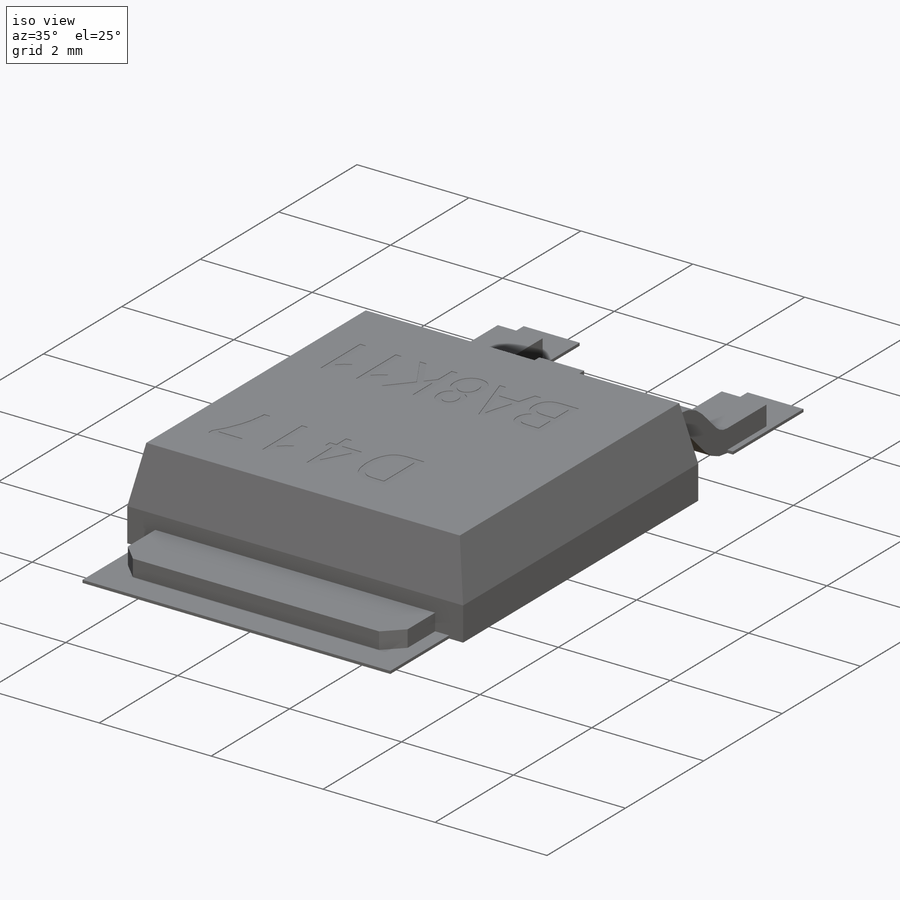
[diagram: iso view]
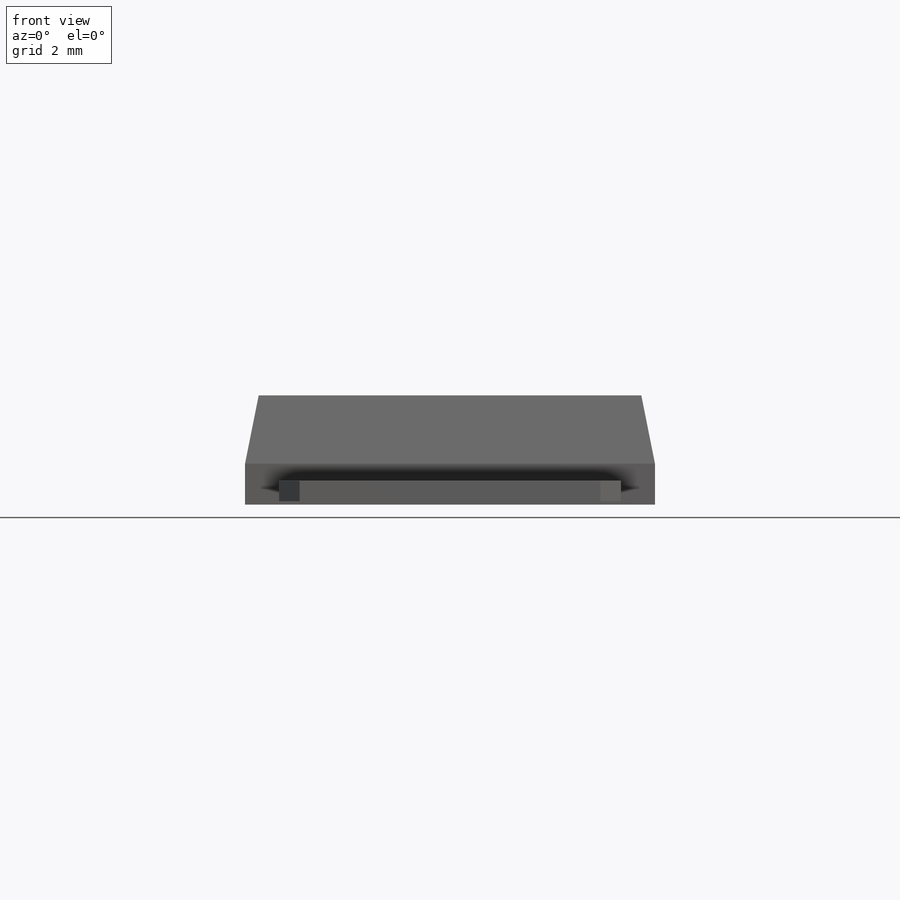
[diagram: front view]
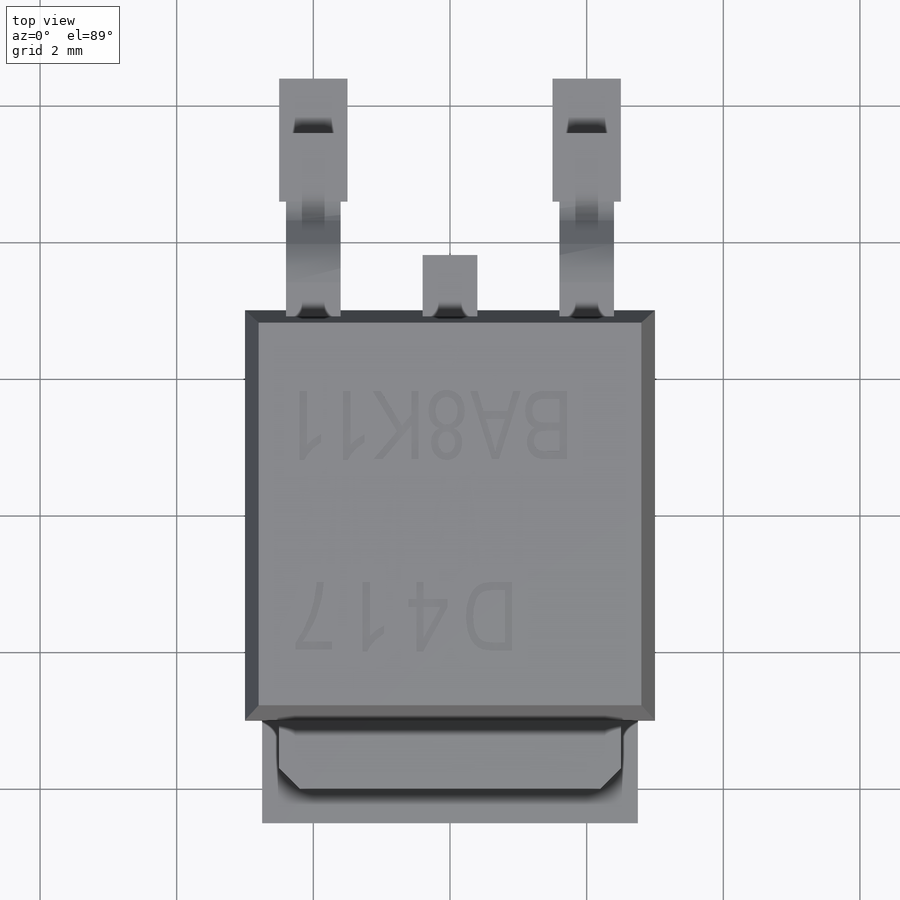
[diagram: top view]
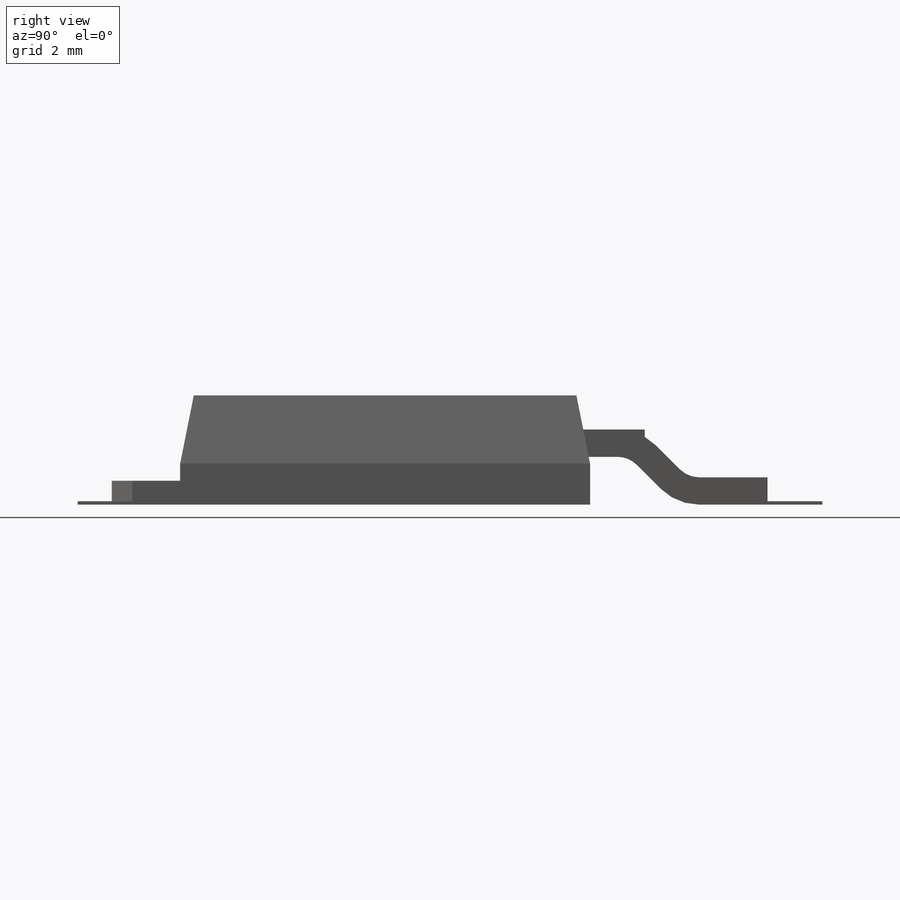
[diagram: right view]
SOLIDWORKS PART (.sldprt)
format: sldprt  version: not decoded by parser v0  size: 568,320 bytes
history: native  units: mm
features: sketch x7, extrude x3, cut_extrude x2, mirror x2, material x1, chamfer x1, plane x1 (+13 scaffold rows collapsed)
feature tree (30):
  scaffold x13  (default folders/planes/origin — collapsed)
  material  "Pure Silver"
  sketch  "Sketch1"  dims[D1=6.0mm D2=3.0mm D3=6.0mm D4=3.0mm]
  extrude  "Boss-Extrude1"  Depth=1.6mm
  chamfer  "Chamfer1"  Distance=1mm
  sketch  "Esquisse1"  dims[c1.D1=1.0mm c1.D2=0.3mm c1.D3=0.3mm c2.D3=45.0deg c2.D4=5.0mm c2.D5=2.5mm]
  extrude  "Boss.-Extru.1"  Depth=0.35mm
  plane  "Plane1"  Offset=2mm
  sketch  "Sketch4"  dims[c1.D1=3.5mm c1.D2=1.0mm c1.D3=5.5mm c1.D4=2.75mm c1.D5=1.0mm c1.D6=2.3mm c1.D7=2.3mm c1.D8=5.5mm c1.D9=0.75mm c1.D10=1.8mm c2.D6=3.0mm]
  extrude  "Boss-Extrude2"  Depth=0.05mm
  sketch  "Sketch5"  dims[c1.D1=~3.199044mm c2.D1=90.0deg c3.D1=1.0mm c3.D2=1.0mm]
  sketch  "Sketch6"  dims[D1=1.8mm D2=1.8mm]
  cut_extrude  "Cut-Extrude1"  Depth=0.01mm
  cut_extrude  "Cut-Extrude2"  Depth=0.01mm
  sketch  "Esquisse2"  dims[c1.D1=0.6mm c1.D2=0.7mm c1.D3=0.2mm c1.D4=2.8mm c1.D5=0.6mm c1.D6=~0.356211mm c2.D6=45.0deg c2.D7=1.0mm c2.D1=0.8mm c2.D5=0.4mm c3.D6=10.0mm c3.D7=5.0mm]
  mirror  "Symétrie1"
  sketch  "Esquisse3"  dims[D1=1.0mm]
  mirror  "Extru.-Mince2"
decode coverage: 13 of 15 modeling features carry decoded parameters
note: ~ marks probable driven/reference dimensions
note: suppression state not decoded; provenance and decode notes live in map.json
